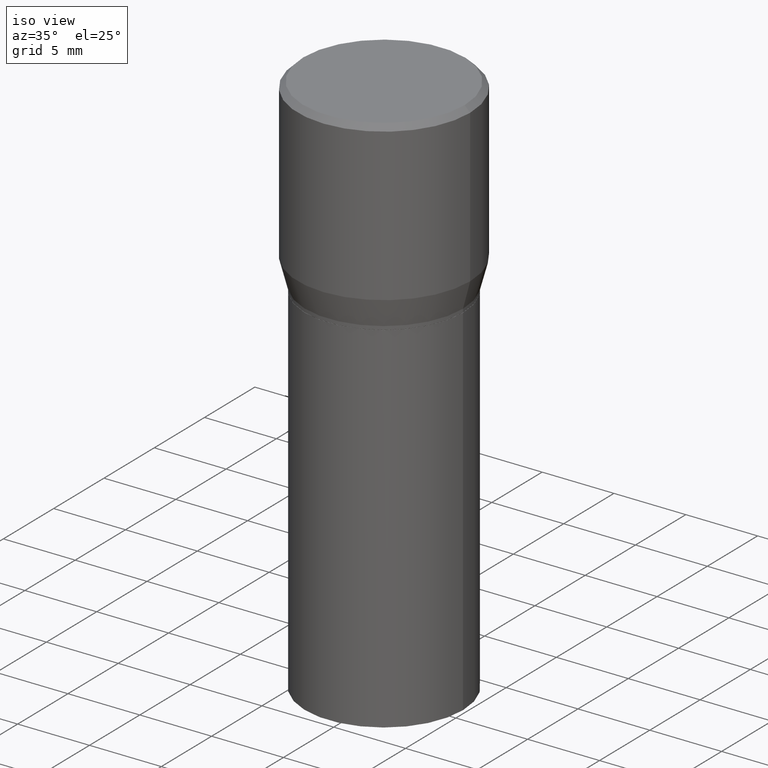
[diagram: clean part render]
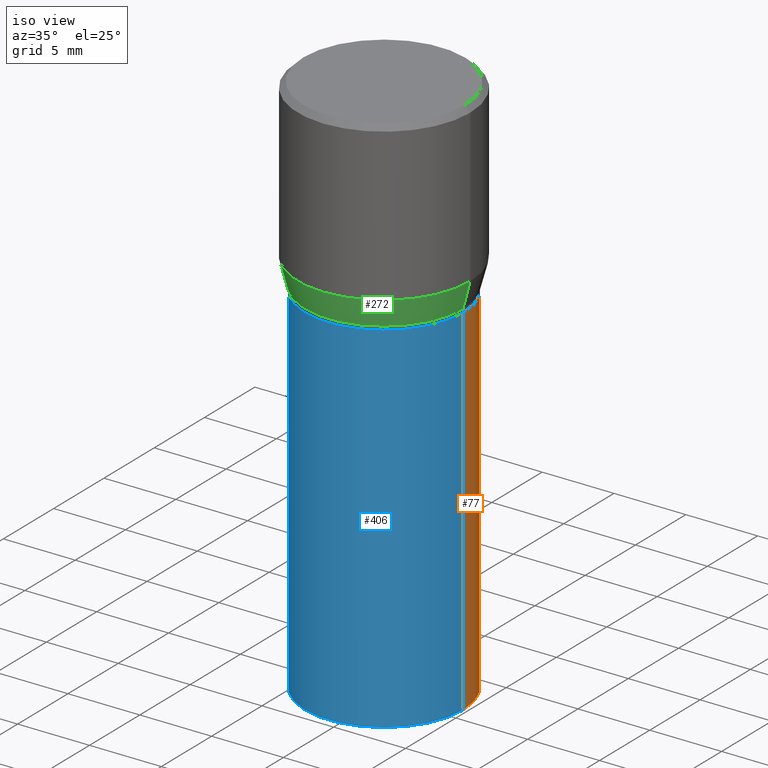
[diagram: same view with three faces highlighted in distinct colors, each labeled with its STEP entity id]
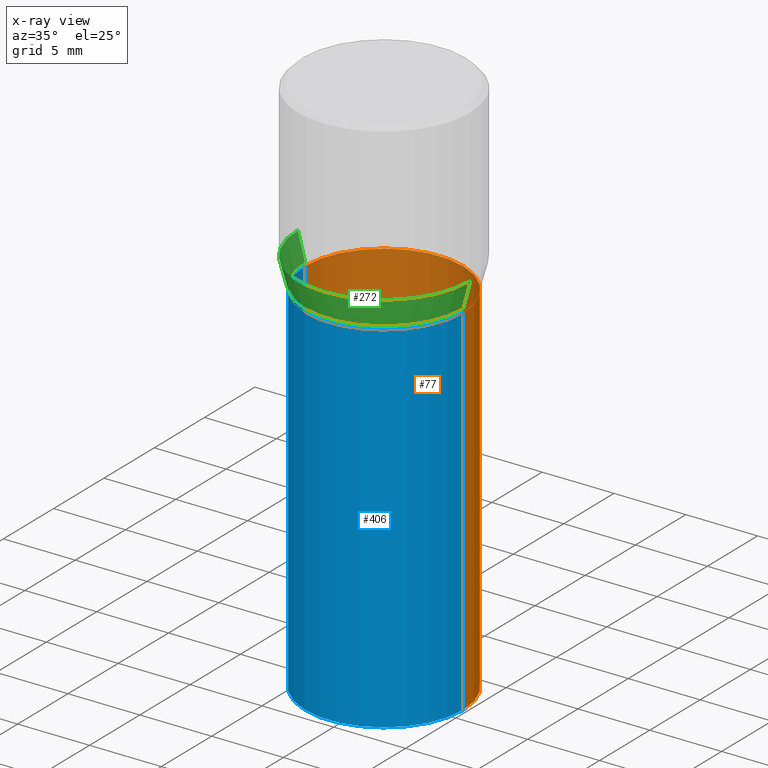
[diagram: x-ray of the same camera — body ghosted, the three highlighted faces saturated]
A machine part, iso view with three faces highlighted in distinct colors.
The next image is the same camera in x-ray (body ghosted, the three faces saturated) — at least one of them is partly hidden behind the body in this view.
Their STEP definitions:

[orange] entity #77 — the highlighted cylindrical surface (partial cylindrical patch) has radius 5.5004 mm, axis along (-0, 0, 1).
#5 = EDGE_CURVE ( 'NONE', #217, #208, #198, .T. ) ;
#8 = DIRECTION ( 'NONE',  ( -2.445468806185136597E-29, 3.491481338843145583E-15, 1.000000000000000000 ) ) ;
#15 = DIRECTION ( 'NONE',  ( -2.445468806185136597E-29, 3.491481338843145583E-15, 1.000000000000000000 ) ) ;
#63 = DIRECTION ( 'NONE',  ( -2.445468806185136877E-29, 3.491481338843145188E-15, 1.000000000000000000 ) ) ;
#74 = AXIS2_PLACEMENT_3D ( 'NONE', #85, #374, #344 ) ;
#77 = ADVANCED_FACE ( 'NONE', ( #411 ), #337, .T. ) ;
#85 = CARTESIAN_POINT ( 'NONE',  ( 1.261128263349675426E-29, -1.800556926441410962E-15, -0.5157000000000001583 ) ) ;
#96 = LINE ( 'NONE', #463, #205 ) ;
#111 = CARTESIAN_POINT ( 'NONE',  ( -0.2165500000000000203, 1.538680294288497096E-15, -1.065195393794699923E-29 ) ) ;
#116 = CARTESIAN_POINT ( 'NONE',  ( 0.000000000000000000, 0.000000000000000000, 0.000000000000000000 ) ) ;
#139 = VERTEX_POINT ( 'NONE', #229 ) ;
#144 = DIRECTION ( 'NONE',  ( 1.000000000000000000, -6.982962677686266711E-15, 4.876176775795935793E-29 ) ) ;
#159 = CARTESIAN_POINT ( 'NONE',  ( -0.2165500000000000203, -1.980209173064567670E-15, -0.5157000000000001583 ) ) ;
#177 = DIRECTION ( 'NONE',  ( -2.445468806185136877E-29, 3.491481338843145188E-15, 1.000000000000000000 ) ) ;
#179 = ORIENTED_EDGE ( 'NONE', *, *, #349, .T. ) ;
#181 = EDGE_LOOP ( 'NONE', ( #179, #216, #325, #450 ) ) ;
#189 = CIRCLE ( 'NONE', #305, 0.2165500000000000203 ) ;
#198 = CIRCLE ( 'NONE', #74, 0.2165500000000000203 ) ;
#205 = VECTOR ( 'NONE', #63, 39.37007874015748143 ) ;
#208 = VERTEX_POINT ( 'NONE', #159 ) ;
#213 = LINE ( 'NONE', #111, #296 ) ;
#216 = ORIENTED_EDGE ( 'NONE', *, *, #338, .T. ) ;
#217 = VERTEX_POINT ( 'NONE', #308 ) ;
#229 = CARTESIAN_POINT ( 'NONE',  ( -0.2165500000000000203, -1.980209173064567670E-15, -1.500000000000000222 ) ) ;
#255 = DIRECTION ( 'NONE',  ( 1.000000000000000000, -6.982962677686264344E-15, 0.000000000000000000 ) ) ;
#289 = EDGE_CURVE ( 'NONE', #430, #217, #96, .T. ) ;
#296 = VECTOR ( 'NONE', #177, 39.37007874015748143 ) ;
#305 = AXIS2_PLACEMENT_3D ( 'NONE', #326, #8, #255 ) ;
#308 = CARTESIAN_POINT ( 'NONE',  ( 0.2165500000000000203, -3.312717494294371784E-15, -0.5157000000000001583 ) ) ;
#325 = ORIENTED_EDGE ( 'NONE', *, *, #5, .F. ) ;
#326 = CARTESIAN_POINT ( 'NONE',  ( 3.668203209277704895E-29, -5.237222008264718177E-15, -1.500000000000000222 ) ) ;
#337 = CYLINDRICAL_SURFACE ( 'NONE', #439, 0.2165500000000000203 ) ;
#338 = EDGE_CURVE ( 'NONE', #139, #208, #213, .T. ) ;
#344 = DIRECTION ( 'NONE',  ( 1.000000000000000000, -6.982962677686265133E-15, 0.000000000000000000 ) ) ;
#349 = EDGE_CURVE ( 'NONE', #430, #139, #189, .T. ) ;
#374 = DIRECTION ( 'NONE',  ( -2.445468806185136597E-29, 3.491481338843145583E-15, 1.000000000000000000 ) ) ;
#379 = CARTESIAN_POINT ( 'NONE',  ( 0.2165500000000000203, -6.749382576117678999E-15, -1.500000000000000222 ) ) ;
#411 = FACE_OUTER_BOUND ( 'NONE', #181, .T. ) ;
#430 = VERTEX_POINT ( 'NONE', #379 ) ;
#439 = AXIS2_PLACEMENT_3D ( 'NONE', #116, #15, #144 ) ;
#450 = ORIENTED_EDGE ( 'NONE', *, *, #289, .F. ) ;
#463 = CARTESIAN_POINT ( 'NONE',  ( 0.2165500000000000203, -1.512160567852961217E-15, 1.055936080798610036E-29 ) ) ;

[blue] entity #406 — the highlighted cylindrical surface (partial cylindrical patch) has radius 5.5004 mm, axis along (-0, 0, 1).
#37 = ORIENTED_EDGE ( 'NONE', *, *, #338, .F. ) ;
#42 = EDGE_LOOP ( 'NONE', ( #37, #440, #68, #435 ) ) ;
#62 = CARTESIAN_POINT ( 'NONE',  ( 1.261128263349675426E-29, -1.800556926441410962E-15, -0.5157000000000001583 ) ) ;
#63 = DIRECTION ( 'NONE',  ( -2.445468806185136877E-29, 3.491481338843145188E-15, 1.000000000000000000 ) ) ;
#68 = ORIENTED_EDGE ( 'NONE', *, *, #289, .T. ) ;
#70 = FACE_OUTER_BOUND ( 'NONE', #42, .T. ) ;
#96 = LINE ( 'NONE', #463, #205 ) ;
#99 = CYLINDRICAL_SURFACE ( 'NONE', #402, 0.2165500000000000203 ) ;
#111 = CARTESIAN_POINT ( 'NONE',  ( -0.2165500000000000203, 1.538680294288497096E-15, -1.065195393794699923E-29 ) ) ;
#117 = AXIS2_PLACEMENT_3D ( 'NONE', #62, #202, #343 ) ;
#139 = VERTEX_POINT ( 'NONE', #229 ) ;
#153 = DIRECTION ( 'NONE',  ( 1.000000000000000000, -6.982962677686264344E-15, 0.000000000000000000 ) ) ;
#159 = CARTESIAN_POINT ( 'NONE',  ( -0.2165500000000000203, -1.980209173064567670E-15, -0.5157000000000001583 ) ) ;
#177 = DIRECTION ( 'NONE',  ( -2.445468806185136877E-29, 3.491481338843145188E-15, 1.000000000000000000 ) ) ;
#192 = EDGE_CURVE ( 'NONE', #139, #430, #312, .T. ) ;
#202 = DIRECTION ( 'NONE',  ( -2.445468806185136597E-29, 3.491481338843145583E-15, 1.000000000000000000 ) ) ;
#205 = VECTOR ( 'NONE', #63, 39.37007874015748143 ) ;
#208 = VERTEX_POINT ( 'NONE', #159 ) ;
#213 = LINE ( 'NONE', #111, #296 ) ;
#217 = VERTEX_POINT ( 'NONE', #308 ) ;
#229 = CARTESIAN_POINT ( 'NONE',  ( -0.2165500000000000203, -1.980209173064567670E-15, -1.500000000000000222 ) ) ;
#233 = CARTESIAN_POINT ( 'NONE',  ( 3.668203209277704895E-29, -5.237222008264718177E-15, -1.500000000000000222 ) ) ;
#243 = DIRECTION ( 'NONE',  ( -2.445468806185136597E-29, 3.491481338843145583E-15, 1.000000000000000000 ) ) ;
#262 = EDGE_CURVE ( 'NONE', #208, #217, #445, .T. ) ;
#268 = DIRECTION ( 'NONE',  ( -2.445468806185136597E-29, 3.491481338843145583E-15, 1.000000000000000000 ) ) ;
#289 = EDGE_CURVE ( 'NONE', #430, #217, #96, .T. ) ;
#296 = VECTOR ( 'NONE', #177, 39.37007874015748143 ) ;
#308 = CARTESIAN_POINT ( 'NONE',  ( 0.2165500000000000203, -3.312717494294371784E-15, -0.5157000000000001583 ) ) ;
#312 = CIRCLE ( 'NONE', #388, 0.2165500000000000203 ) ;
#338 = EDGE_CURVE ( 'NONE', #139, #208, #213, .T. ) ;
#343 = DIRECTION ( 'NONE',  ( 1.000000000000000000, -6.982962677686265133E-15, 0.000000000000000000 ) ) ;
#360 = DIRECTION ( 'NONE',  ( 1.000000000000000000, -6.982962677686266711E-15, 4.876176775795935793E-29 ) ) ;
#363 = CARTESIAN_POINT ( 'NONE',  ( 0.000000000000000000, 0.000000000000000000, 0.000000000000000000 ) ) ;
#379 = CARTESIAN_POINT ( 'NONE',  ( 0.2165500000000000203, -6.749382576117678999E-15, -1.500000000000000222 ) ) ;
#388 = AXIS2_PLACEMENT_3D ( 'NONE', #233, #268, #153 ) ;
#402 = AXIS2_PLACEMENT_3D ( 'NONE', #363, #243, #360 ) ;
#406 = ADVANCED_FACE ( 'NONE', ( #70 ), #99, .T. ) ;
#430 = VERTEX_POINT ( 'NONE', #379 ) ;
#435 = ORIENTED_EDGE ( 'NONE', *, *, #262, .F. ) ;
#440 = ORIENTED_EDGE ( 'NONE', *, *, #192, .T. ) ;
#445 = CIRCLE ( 'NONE', #117, 0.2165500000000000203 ) ;
#463 = CARTESIAN_POINT ( 'NONE',  ( 0.2165500000000000203, -1.512160567852961217E-15, 1.055936080798610036E-29 ) ) ;

[green] entity #272 — the highlighted conical surface has half-angle 15 deg.
#3 = AXIS2_PLACEMENT_3D ( 'NONE', #87, #150, #299 ) ;
#21 = CARTESIAN_POINT ( 'NONE',  ( 1.057335613469222325E-29, -1.509595033060739709E-15, -0.4323652016312719004 ) ) ;
#47 = CARTESIAN_POINT ( 'NONE',  ( 0.2361999999999999933, -3.158970817530236235E-15, -0.4323652016312719004 ) ) ;
#61 = EDGE_CURVE ( 'NONE', #367, #353, #414, .T. ) ;
#79 = ORIENTED_EDGE ( 'NONE', *, *, #61, .T. ) ;
#87 = CARTESIAN_POINT ( 'NONE',  ( 1.236673575287824021E-29, -1.765642113052979313E-15, -0.5057000000000001494 ) ) ;
#106 = LINE ( 'NONE', #167, #409 ) ;
#131 = ORIENTED_EDGE ( 'NONE', *, *, #355, .T. ) ;
#140 = VERTEX_POINT ( 'NONE', #47 ) ;
#150 = DIRECTION ( 'NONE',  ( -2.445468806185136597E-29, 3.491481338843145583E-15, 1.000000000000000000 ) ) ;
#164 = CARTESIAN_POINT ( 'NONE',  ( 1.236673575287824021E-29, -1.765642113052979313E-15, -0.5057000000000001494 ) ) ;
#167 = CARTESIAN_POINT ( 'NONE',  ( 0.2165500000000000480, -3.277802680905940530E-15, -0.5057000000000001494 ) ) ;
#211 = DIRECTION ( 'NONE',  ( 1.000000000000000000, -6.982962677686266711E-15, 0.000000000000000000 ) ) ;
#226 = AXIS2_PLACEMENT_3D ( 'NONE', #164, #273, #211 ) ;
#234 = EDGE_LOOP ( 'NONE', ( #245, #79, #131, #396 ) ) ;
#235 = CONICAL_SURFACE ( 'NONE', #226, 0.2165500000000000480, 0.2617993877991494078 ) ;
#245 = ORIENTED_EDGE ( 'NONE', *, *, #413, .F. ) ;
#251 = VERTEX_POINT ( 'NONE', #390 ) ;
#258 = DIRECTION ( 'NONE',  ( -0.2588190451025206840, 5.211531920934545520E-15, 0.9659258262890682012 ) ) ;
#261 = AXIS2_PLACEMENT_3D ( 'NONE', #21, #302, #354 ) ;
#272 = ADVANCED_FACE ( 'NONE', ( #392 ), #235, .T. ) ;
#273 = DIRECTION ( 'NONE',  ( -2.445468806185136597E-29, 3.491481338843145583E-15, 1.000000000000000000 ) ) ;
#283 = LINE ( 'NONE', #318, #358 ) ;
#298 = CIRCLE ( 'NONE', #261, 0.2361999999999999933 ) ;
#299 = DIRECTION ( 'NONE',  ( 1.000000000000000000, -6.982962677686266711E-15, 0.000000000000000000 ) ) ;
#302 = DIRECTION ( 'NONE',  ( -2.445468806185136597E-29, 3.491481338843145583E-15, 1.000000000000000000 ) ) ;
#318 = CARTESIAN_POINT ( 'NONE',  ( -0.2165500000000000480, -2.269618187644819696E-16, -0.5057000000000001494 ) ) ;
#322 = DIRECTION ( 'NONE',  ( 0.2588190451025206840, 1.565188264969626504E-15, 0.9659258262890682012 ) ) ;
#328 = CARTESIAN_POINT ( 'NONE',  ( 0.2165500000000000480, -3.277802680905940530E-15, -0.5057000000000001494 ) ) ;
#353 = VERTEX_POINT ( 'NONE', #328 ) ;
#354 = DIRECTION ( 'NONE',  ( 1.000000000000000000, -6.982962677686268288E-15, 0.000000000000000000 ) ) ;
#355 = EDGE_CURVE ( 'NONE', #353, #140, #106, .T. ) ;
#358 = VECTOR ( 'NONE', #258, 39.37007874015748854 ) ;
#367 = VERTEX_POINT ( 'NONE', #397 ) ;
#390 = CARTESIAN_POINT ( 'NONE',  ( -0.2361999999999999933, 1.687069088046168326E-16, -0.4323652016312719004 ) ) ;
#392 = FACE_OUTER_BOUND ( 'NONE', #234, .T. ) ;
#396 = ORIENTED_EDGE ( 'NONE', *, *, #434, .F. ) ;
#397 = CARTESIAN_POINT ( 'NONE',  ( -0.2165500000000000480, -2.912745497993258696E-17, -0.5057000000000001494 ) ) ;
#409 = VECTOR ( 'NONE', #322, 39.37007874015748854 ) ;
#413 = EDGE_CURVE ( 'NONE', #367, #251, #283, .T. ) ;
#414 = CIRCLE ( 'NONE', #3, 0.2165500000000000480 ) ;
#434 = EDGE_CURVE ( 'NONE', #251, #140, #298, .T. ) ;